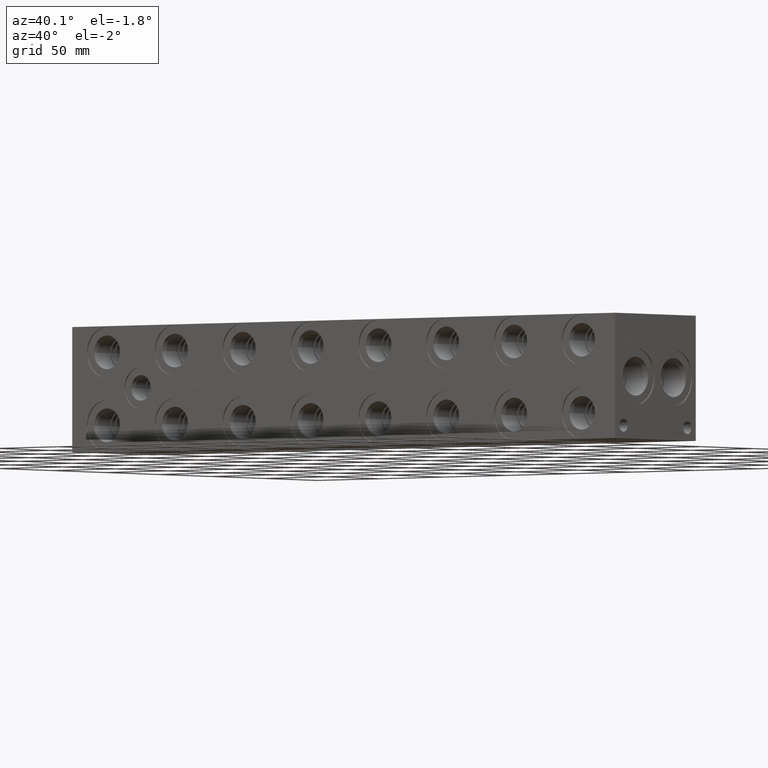
[diagram: clean part render]
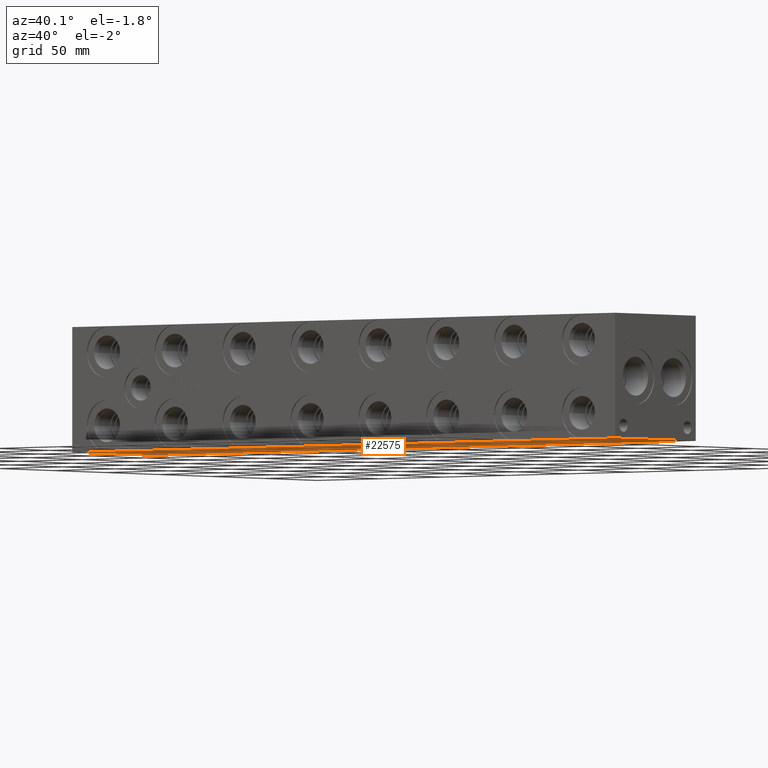
[diagram: same view with one face highlighted and labeled with its STEP entity id]
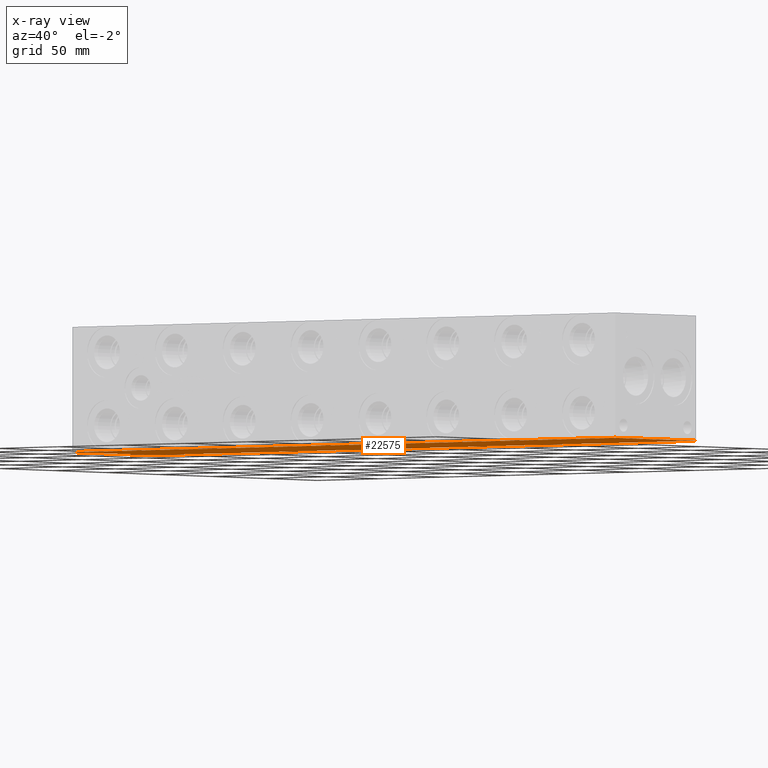
[diagram: x-ray of the same camera — body ghosted, the highlighted face saturated]
A machine part, auxiliary view. The second image highlights one B-rep face of the part: STEP entity #22575.
The next image is the same camera in x-ray: the body ghosted, the highlighted face saturated — about 0% of this face is hidden behind the body in this view.
In plain terms, the highlighted planar face has unit normal (0, 0, 1).
Its self-contained STEP definition (entity closure, byte-faithful):
#2009=PLANE('',#24334);
#3194=FACE_OUTER_BOUND('',#4630,.T.);
#4630=EDGE_LOOP('',(#20443,#20444,#20445,#20446));
#4675=LINE('',#29981,#6498);
#5989=LINE('',#36707,#7812);
#6048=LINE('',#36979,#7871);
#6452=LINE('',#39509,#8275);
#6498=VECTOR('',#24405,10.);
#7812=VECTOR('',#26645,10.);
#7871=VECTOR('',#26758,10.);
#8275=VECTOR('',#29640,10.);
#8835=VERTEX_POINT('',#29979);
#8836=VERTEX_POINT('',#29980);
#10057=VERTEX_POINT('',#36706);
#10115=VERTEX_POINT('',#36978);
#11075=EDGE_CURVE('',#8835,#8836,#4675,.T.);
#12889=EDGE_CURVE('',#8836,#10057,#5989,.T.);
#12972=EDGE_CURVE('',#10115,#8835,#6048,.T.);
#14149=EDGE_CURVE('',#10057,#10115,#6452,.T.);
#20443=ORIENTED_EDGE('',*,*,#11075,.F.);
#20444=ORIENTED_EDGE('',*,*,#12972,.F.);
#20445=ORIENTED_EDGE('',*,*,#14149,.F.);
#20446=ORIENTED_EDGE('',*,*,#12889,.F.);
#22575=ADVANCED_FACE('',(#3194),#2009,.F.);
#24334=AXIS2_PLACEMENT_3D('',#39514,#29648,#29649);
#24405=DIRECTION('',(1.,0.,0.));
#26645=DIRECTION('',(0.,1.,0.));
#26758=DIRECTION('',(0.,-1.,0.));
#29640=DIRECTION('',(-1.,0.,0.));
#29648=DIRECTION('center_axis',(0.,0.,1.));
#29649=DIRECTION('ref_axis',(1.,0.,0.));
#29979=CARTESIAN_POINT('',(0.,0.,0.));
#29980=CARTESIAN_POINT('',(431.8,0.,0.));
#29981=CARTESIAN_POINT('',(0.,0.,0.));
#36706=CARTESIAN_POINT('',(431.8,76.2,0.));
#36707=CARTESIAN_POINT('',(431.8,0.,0.));
#36978=CARTESIAN_POINT('',(0.,76.2,0.));
#36979=CARTESIAN_POINT('',(0.,76.2,0.));
#39509=CARTESIAN_POINT('',(431.8,76.2,0.));
#39514=CARTESIAN_POINT('Origin',(215.9,38.1,0.));